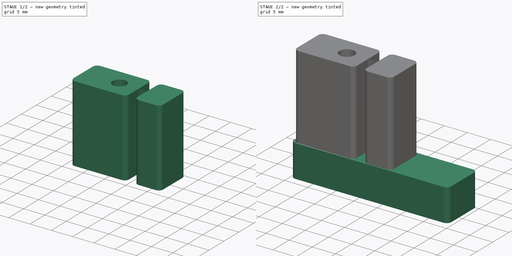
[diagram: build sequence overview — one tinted view per stage of 2, left to right]
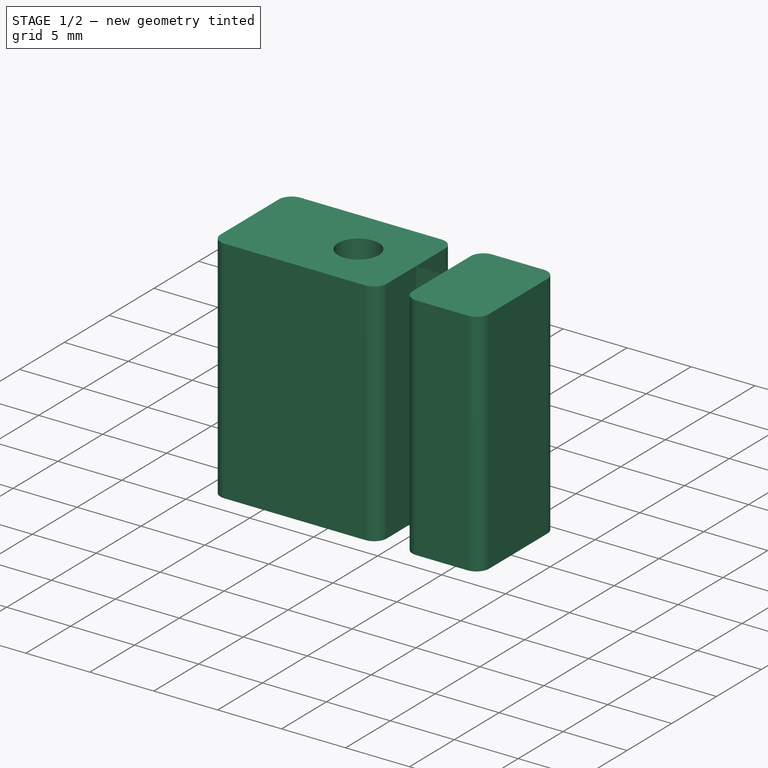
[diagram: stage 1 of 2 — iso view after this stage's code; geometry added in this stage tinted green]
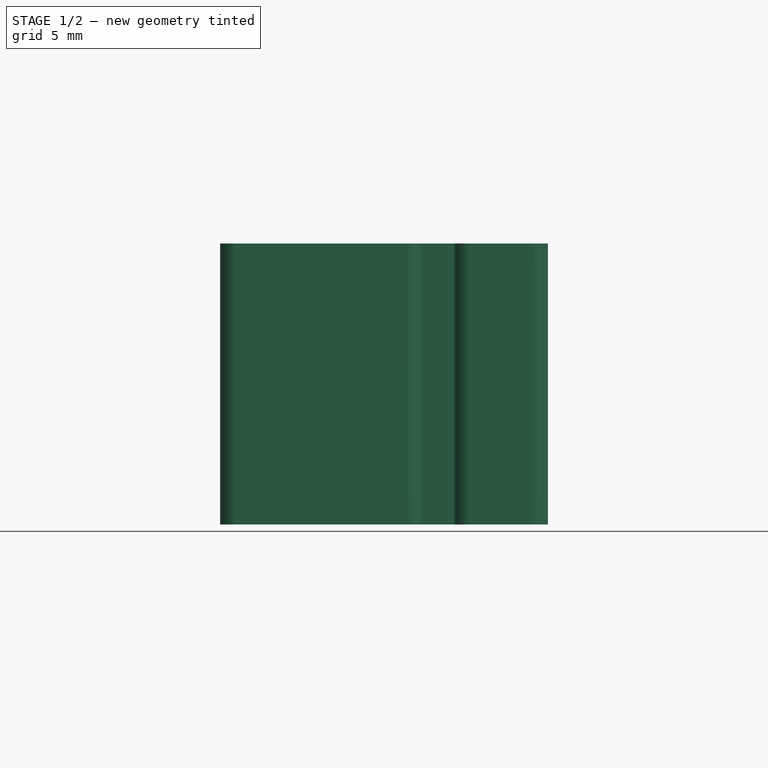
[diagram: stage 1 of 2 — front view after this stage's code; geometry added in this stage tinted green]
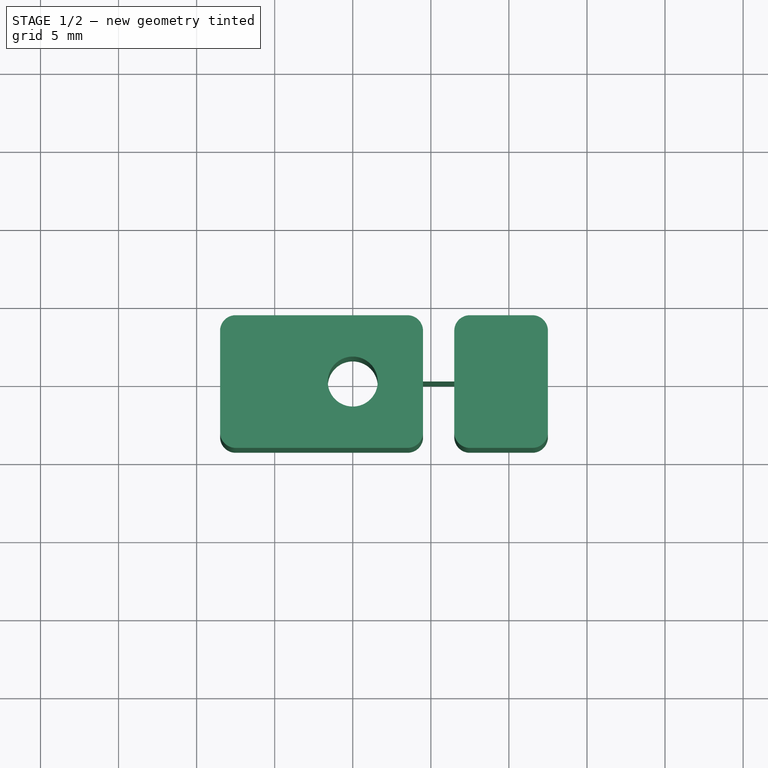
[diagram: stage 1 of 2 — top view after this stage's code; geometry added in this stage tinted green]
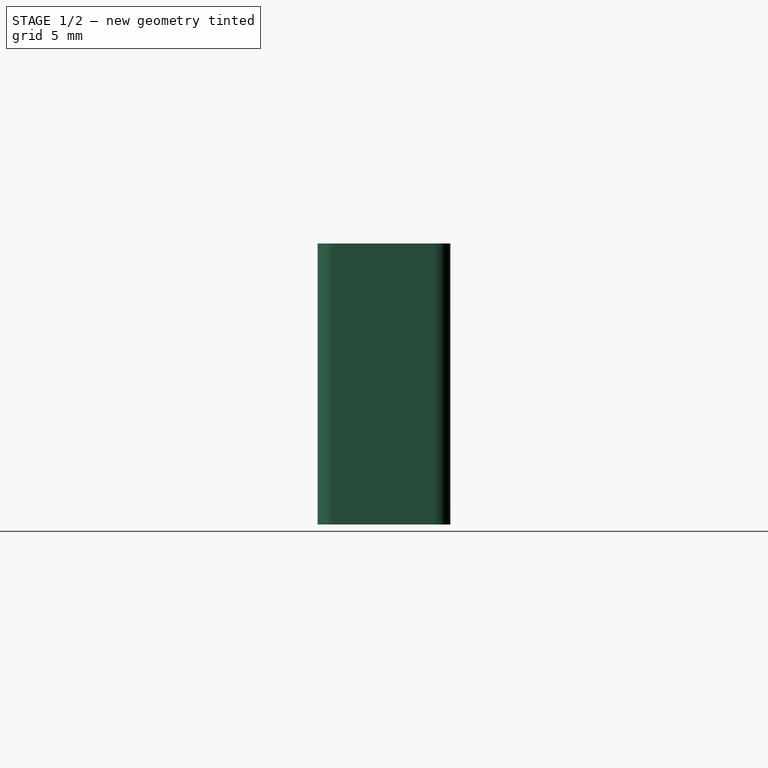
[diagram: stage 1 of 2 — right view after this stage's code; geometry added in this stage tinted green]
FCSTD DOCUMENT  (FreeCAD 0.21R33771 (Git))
Label: 20240520b_elfero_bohrlehre_schraube_distanzbolzen_15
License: All rights reserved
LicenseURL: http://en.wikipedia.org/wiki/All_rights_reserved
objects: Sketcher::SketchObject×2, PartDesign::Pad×2, PartDesign::Body×1
note: 7 computed .brp shape members not serialized (recipe doc carries the construction recipe); baked Part::Feature solids carry a one-line shape summary decoded from their .brp

FEATURE [Sketcher::SketchObject] Sketch
  FullyConstrained = false
  MapMode = 5
  Support = -> [XY_Plane]
  sketch-geometry (29):
    g0: ArcOfCircle CenterX=-7.5 CenterY=3.25 CenterZ=0 NormalX=0 NormalY=0 NormalZ=1 AngleXU=0 Radius=1 StartAngle=1.5708 EndAngle=3.14159
    g1: LineSegment StartX=-7.5 StartY=4.25 StartZ=0 EndX=3.5 EndY=4.25 EndZ=0
    g2: ArcOfCircle CenterX=3.5 CenterY=3.25 CenterZ=0 NormalX=0 NormalY=0 NormalZ=1 AngleXU=0 Radius=1 StartAngle=1.77e-14 EndAngle=1.5708
    g3: LineSegment StartX=4.5 StartY=3.25 StartZ=0 EndX=4.5 EndY=0.001 EndZ=0
    g4: ArcOfCircle CenterX=3.50674 CenterY=-3.25 CenterZ=0 NormalX=0 NormalY=0 NormalZ=1 AngleXU=0 Radius=1 StartAngle=4.71239 EndAngle=6.16704
    g5: LineSegment StartX=3.50674 StartY=-4.25 StartZ=0 EndX=-7.5 EndY=-4.25 EndZ=0
    g6: ArcOfCircle CenterX=-7.5 CenterY=-3.25 CenterZ=0 NormalX=0 NormalY=0 NormalZ=1 AngleXU=0 Radius=1 StartAngle=3.14159 EndAngle=4.71239
    g7: LineSegment StartX=-8.5 StartY=-3.25 StartZ=0 EndX=-8.5 EndY=3.25 EndZ=0
    g8: GeomPoint X=-8.5 Y=4.25 Z=0
    g9: GeomPoint X=4.5 Y=-4.25 Z=0
    g10: Circle CenterX=0 CenterY=0 CenterZ=0 NormalX=0 NormalY=0 NormalZ=1 AngleXU=0 Radius=1.6
    g11: ArcOfCircle CenterX=7.5 CenterY=3.25 CenterZ=0 NormalX=0 NormalY=0 NormalZ=1 AngleXU=0 Radius=1 StartAngle=1.5708 EndAngle=3.14125
    g12: LineSegment StartX=7.5 StartY=4.25 StartZ=0 EndX=11.5 EndY=4.25 EndZ=0
    g13: ArcOfCircle CenterX=11.5 CenterY=3.25 CenterZ=0 NormalX=0 NormalY=0 NormalZ=1 AngleXU=0 Radius=1 StartAngle=0 EndAngle=1.5708
    g14: LineSegment StartX=12.5 StartY=3.25 StartZ=0 EndX=12.5 EndY=-3.25 EndZ=0
    g15: ArcOfCircle CenterX=11.5 CenterY=-3.25 CenterZ=0 NormalX=0 NormalY=0 NormalZ=1 AngleXU=0 Radius=1 StartAngle=4.71239 EndAngle=6.28319
    g16: LineSegment StartX=11.5 StartY=-4.25 StartZ=0 EndX=7.5 EndY=-4.25 EndZ=0
    g17: ArcOfCircle CenterX=7.5 CenterY=-3.25 CenterZ=0 NormalX=0 NormalY=0 NormalZ=1 AngleXU=0 Radius=1 StartAngle=3.14159 EndAngle=4.71239
    g18: LineSegment StartX=6.5 StartY=-3.25 StartZ=0 EndX=6.5 EndY=0 EndZ=0
    g19: GeomPoint X=6.5 Y=4.25 Z=0
    g20: GeomPoint X=12.5 Y=-4.25 Z=0
    g21: LineSegment StartX=6.5 StartY=4.25 StartZ=0 EndX=3.5 EndY=4.25 EndZ=0
    g22: LineSegment StartX=7.5 StartY=-4.25 StartZ=0 EndX=3.50674 EndY=-4.25 EndZ=0
    g23: LineSegment StartX=4.5 StartY=0.001 StartZ=0 EndX=6.5 EndY=0.001 EndZ=0
    g24: LineSegment StartX=4.5 StartY=0 StartZ=0 EndX=6.5 EndY=0 EndZ=0
    g25: LineSegment StartX=6.5 StartY=0.001 StartZ=0 EndX=6.5 EndY=3.25035 EndZ=0
    g26: LineSegment StartX=4.5 StartY=0 StartZ=0 EndX=4.5 EndY=-3.36588 EndZ=0
    g27: LineSegment StartX=4.5 StartY=0 StartZ=0 EndX=4.5 EndY=0.001 EndZ=0
    g28: LineSegment StartX=6.5 StartY=0.001 StartZ=0 EndX=6.5 EndY=0 EndZ=0
  constraints (69):
    c: Tangent(g0,g1) = 1.5708
    c: Tangent(g1,g2) = 1.5708
    c: Tangent(g2,g3) = 1.5708
    c: Coincident(g26,g4) = 1.5708
    c: Tangent(g4,g5) = 1.5708
    c: Tangent(g5,g6) = 1.5708
    c: Tangent(g6,g7) = 1.5708
    c: Tangent(g7,g0) = 1.5708
    c: Horizontal(g1)
    c: Horizontal(g5)
    c: Vertical(g3)
    c: Equal(g0,g2)
    c: Equal(g2,g4)
    c: Equal(g4,g6)
    c: PointOnObject(g8,g1)
    c: PointOnObject(g8,g7)
    c: PointOnObject(g9,g3)
    c: PointOnObject(g9,g5)
    c: Radius(g2) = 1
    c: Symmetric(g0,g6,g-1)
    c: DistanceX(g0,g2) = 13
    c: DistanceY(g5,g0) = 8.5
    c: Coincident(g10,g-1)
    c: Diameter(g10) = 3.2
    c: Tangent(g11,g12) = 1.5708
    c: Tangent(g12,g13) = 1.5708
    c: Tangent(g13,g14) = 1.5708
    c: Tangent(g14,g15) = 1.5708
    c: Tangent(g15,g16) = 1.5708
    c: Tangent(g16,g17) = 1.5708
    c: Tangent(g17,g18) = 1.5708
    c: Coincident(g25,g11) = 1.5708
    c: Horizontal(g12)
    c: Horizontal(g16)
    c: Vertical(g14)
    c: Vertical(g18)
    c: Equal(g11,g13)
    c: Equal(g13,g15)
    c: Equal(g15,g17)
    c: PointOnObject(g19,g12)
    c: PointOnObject(g19,g18)
    c: PointOnObject(g20,g14)
    c: PointOnObject(g20,g16)
    c: Radius(g13) = 1
    c: DistanceX(g26,g17) = 2
    c: Coincident(g21,g19)
    c: Horizontal(g21)
    c: Coincident(g21,g1)
    c: Coincident(g22,g16)
    c: Horizontal(g22)
    c: Coincident(g22,g4)
    c: DistanceX(g17,g14) = 6
    c: Horizontal(g23)
    c: Horizontal(g24)
    c: Coincident(g18,g24)
    c: Coincident(g25,g23)
    c: Coincident(g3,g23)
    c: Coincident(g26,g24)
    c: Vertical(g25)
    c: Vertical(g26)
    c: DistanceY(g18,g23) = 0.001
    c: PointOnObject(g18,g-1)
    c: Coincident(g27,g24)
    c: Coincident(g27,g3)
    c: Vertical(g27)
    c: Coincident(g28,g23)
    c: Coincident(g28,g18)
    c: Vertical(g28)
    c: DistanceX(g10,g3) = 4.5
FEATURE [PartDesign::Pad] Pad
  Direction = (0,0,1)
  Length = 18
  Length2 = 10
  Profile = -> Sketch
  ReferenceAxis = -> Sketch [N_Axis]
  Type = 0
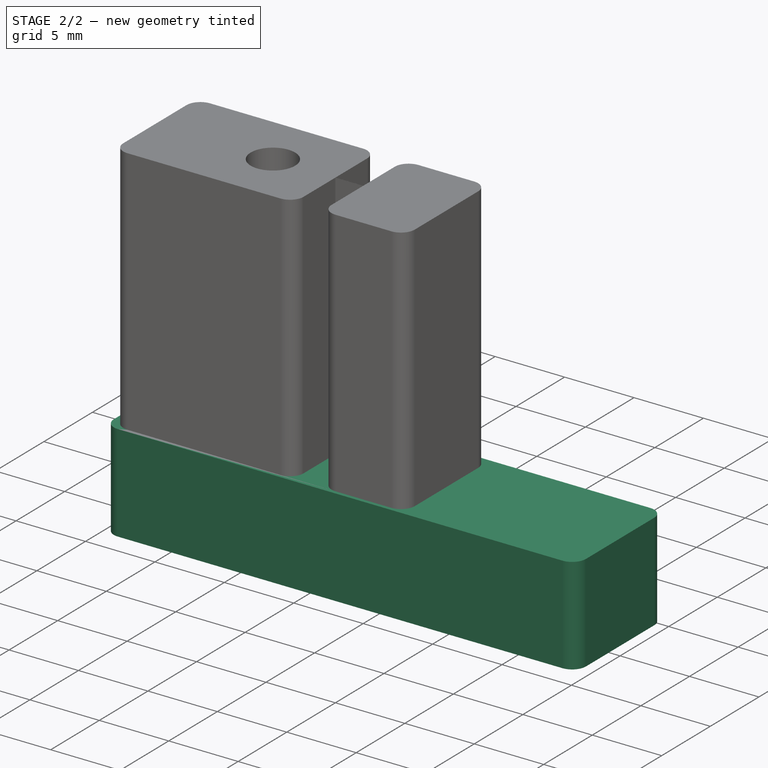
[diagram: stage 2 of 2 — iso view after this stage's code; geometry added in this stage tinted green]
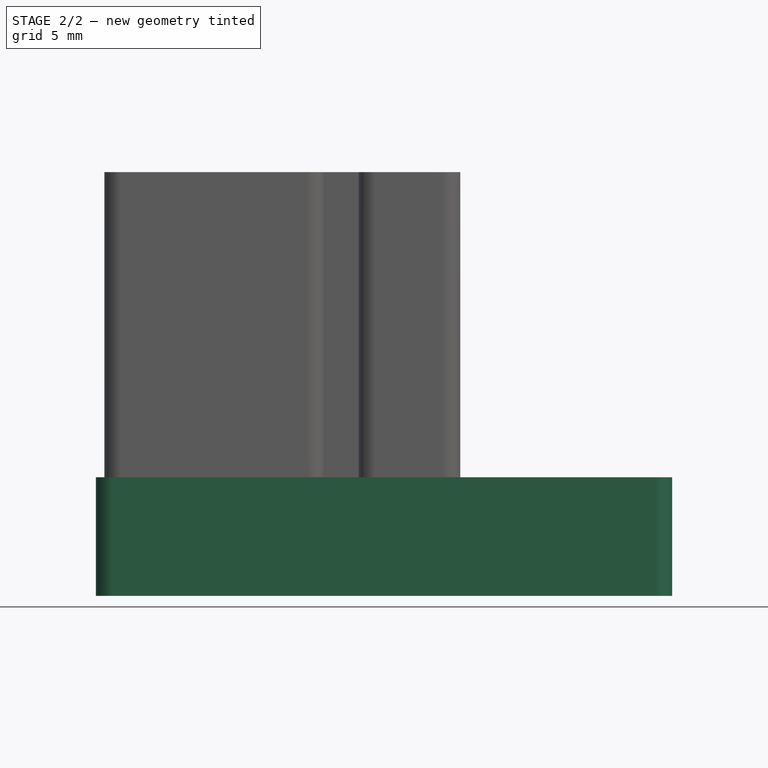
[diagram: stage 2 of 2 — front view after this stage's code; geometry added in this stage tinted green]
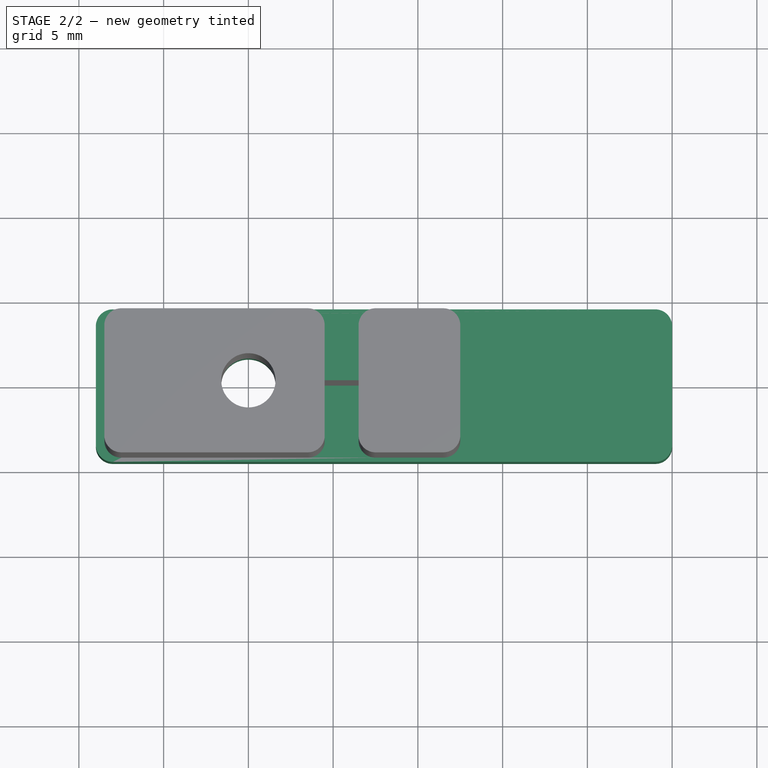
[diagram: stage 2 of 2 — top view after this stage's code; geometry added in this stage tinted green]
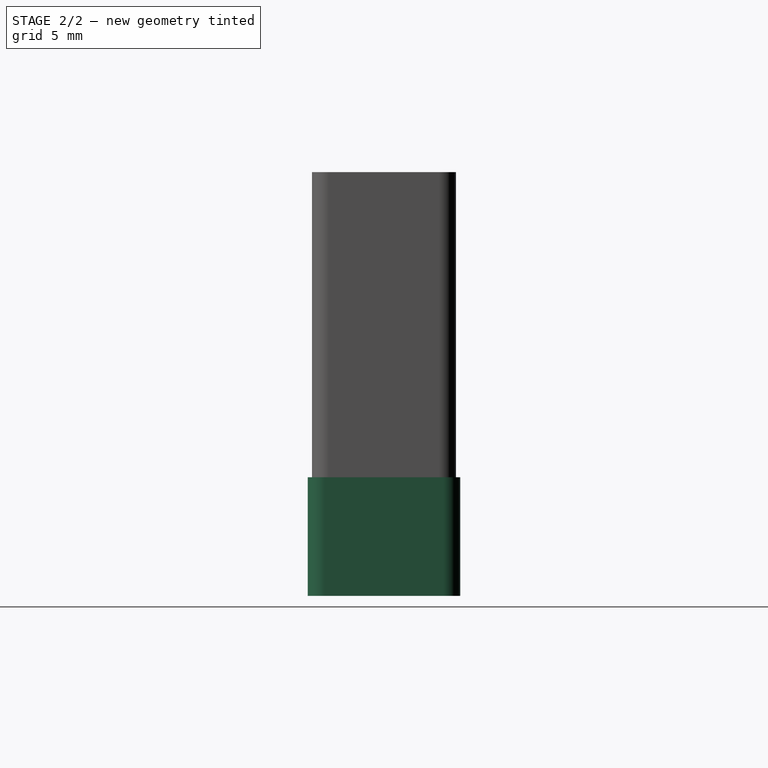
[diagram: stage 2 of 2 — right view after this stage's code; geometry added in this stage tinted green]
FEATURE [Sketcher::SketchObject] Sketch001
  FullyConstrained = true
  MapMode = 5
  Support = -> [XY_Plane]
  sketch-geometry (13):
    g0: ArcOfCircle CenterX=-8 CenterY=3.5 CenterZ=0 NormalX=0 NormalY=0 NormalZ=1 AngleXU=0 Radius=1 StartAngle=1.5708 EndAngle=3.14159
    g1: LineSegment StartX=-8 StartY=4.5 StartZ=0 EndX=24 EndY=4.5 EndZ=0
    g2: ArcOfCircle CenterX=24 CenterY=3.5 CenterZ=0 NormalX=0 NormalY=0 NormalZ=1 AngleXU=0 Radius=1 StartAngle=3.8413e-12 EndAngle=1.5708
    g3: LineSegment StartX=25 StartY=3.5 StartZ=0 EndX=25 EndY=-3.5 EndZ=0
    g4: ArcOfCircle CenterX=24 CenterY=-3.5 CenterZ=0 NormalX=0 NormalY=0 NormalZ=1 AngleXU=0 Radius=1 StartAngle=4.71239 EndAngle=6.28319
    g5: LineSegment StartX=24 StartY=-4.5 StartZ=0 EndX=-8 EndY=-4.5 EndZ=0
    g6: ArcOfCircle CenterX=-8 CenterY=-3.5 CenterZ=0 NormalX=0 NormalY=0 NormalZ=1 AngleXU=0 Radius=1 StartAngle=3.14159 EndAngle=4.71239
    g7: LineSegment StartX=-9 StartY=-3.5 StartZ=0 EndX=-9 EndY=3.5 EndZ=0
    g8: GeomPoint X=-9 Y=4.5 Z=0
    g9: GeomPoint X=25 Y=-4.5 Z=0
    g10: LineSegment StartX=0 StartY=0 StartZ=0 EndX=-8 EndY=3.5 EndZ=0
    g11: LineSegment StartX=0 StartY=0 StartZ=0 EndX=-8 EndY=-3.5 EndZ=0
    g12: Circle CenterX=0 CenterY=0 CenterZ=0 NormalX=0 NormalY=0 NormalZ=1 AngleXU=0 Radius=1.65
  constraints (30):
    c: Tangent(g0,g1) = 1.5708
    c: Tangent(g1,g2) = 1.5708
    c: Tangent(g2,g3) = 1.5708
    c: Tangent(g3,g4) = 1.5708
    c: Tangent(g4,g5) = 1.5708
    c: Tangent(g5,g6) = 1.5708
    c: Tangent(g6,g7) = 1.5708
    c: Tangent(g7,g0) = 1.5708
    c: Horizontal(g1)
    c: Horizontal(g5)
    c: Vertical(g3)
    c: Vertical(g7)
    c: Equal(g0,g2)
    c: Equal(g2,g4)
    c: Equal(g4,g6)
    c: PointOnObject(g8,g1)
    c: PointOnObject(g8,g7)
    c: PointOnObject(g9,g3)
    c: PointOnObject(g9,g5)
    c: Radius(g2) = 1
    c: Coincident(g10,g-1)
    c: Coincident(g10,g0)
    c: Coincident(g11,g10)
    c: Coincident(g11,g6)
    c: Equal(g10,g11)
    c: DistanceY(g5,g0) = 9
    c: Coincident(g12,g10)
    c: Diameter(g12) = 3.3
    c: DistanceX(g2) = 25
    c: DistanceX(g0) = -9
FEATURE [PartDesign::Pad] Pad001
  BaseFeature = -> Pad
  Direction = (0,0,1)
  Length = 7
  Length2 = 10
  Profile = -> Sketch001
  ReferenceAxis = -> Sketch001 [N_Axis]
  Reversed = true
  Type = 0
FEATURE [PartDesign::Body] Body  label="body"
  Group = -> [Sketch,Pad,Sketch001,Pad001]
  Origin = -> Origin
  Tip = -> Pad001
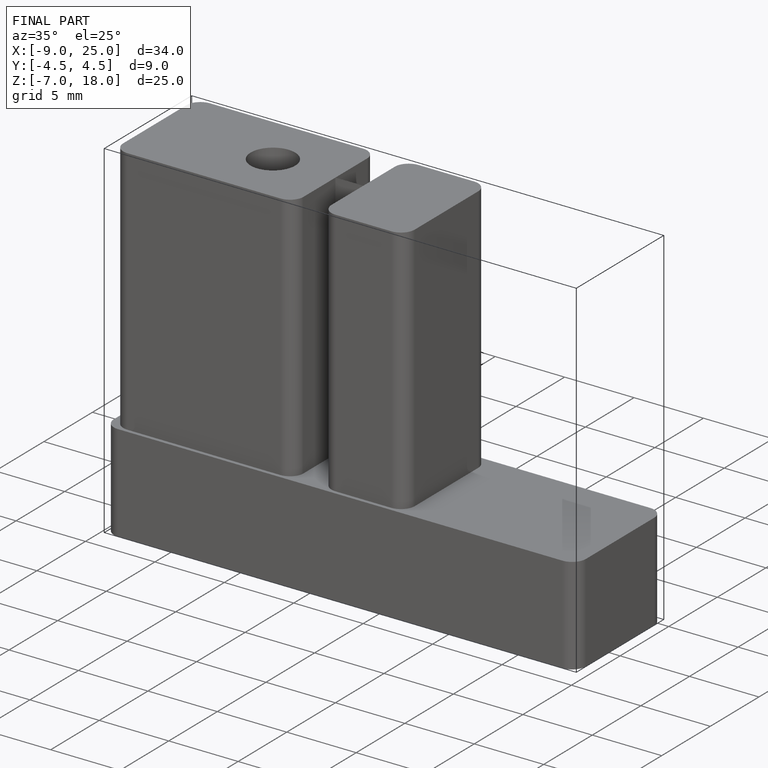
[diagram: finished part — iso view with bounding-box wireframe]
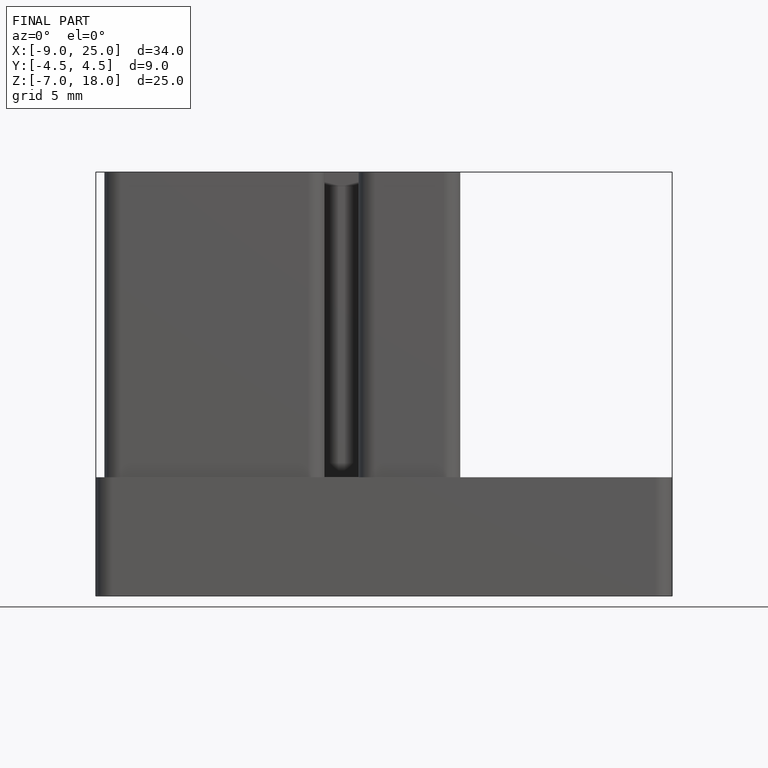
[diagram: finished part — front view with bounding-box wireframe]
